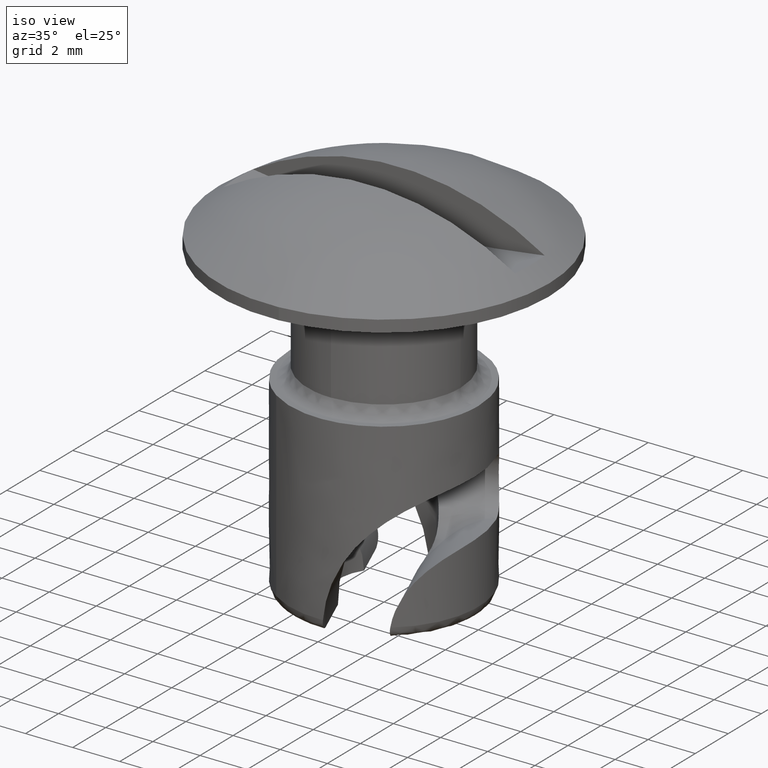
[diagram: clean part render]
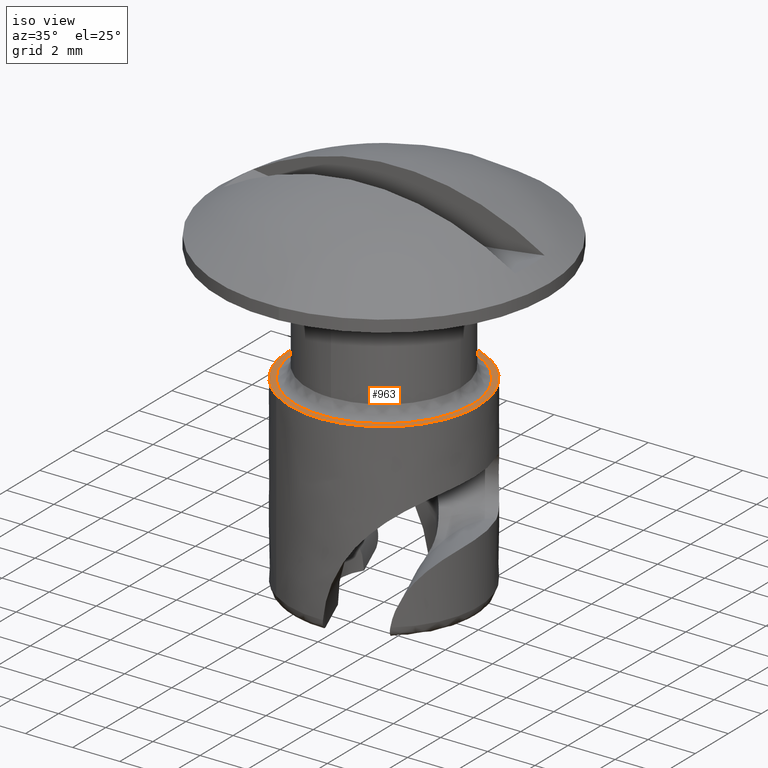
[diagram: same view with one face highlighted and labeled with its STEP entity id]
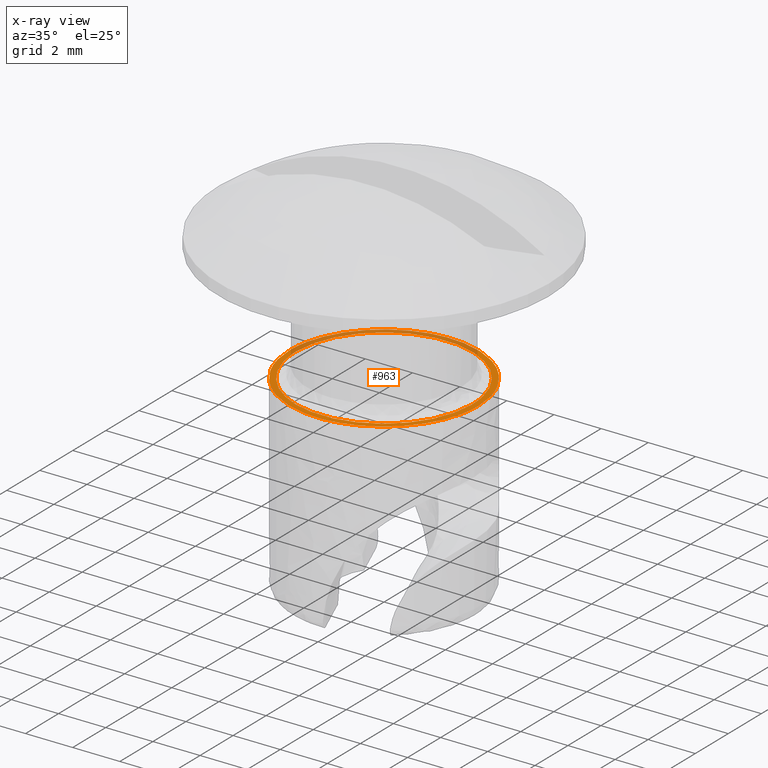
[diagram: x-ray of the same camera — body ghosted, the highlighted face saturated]
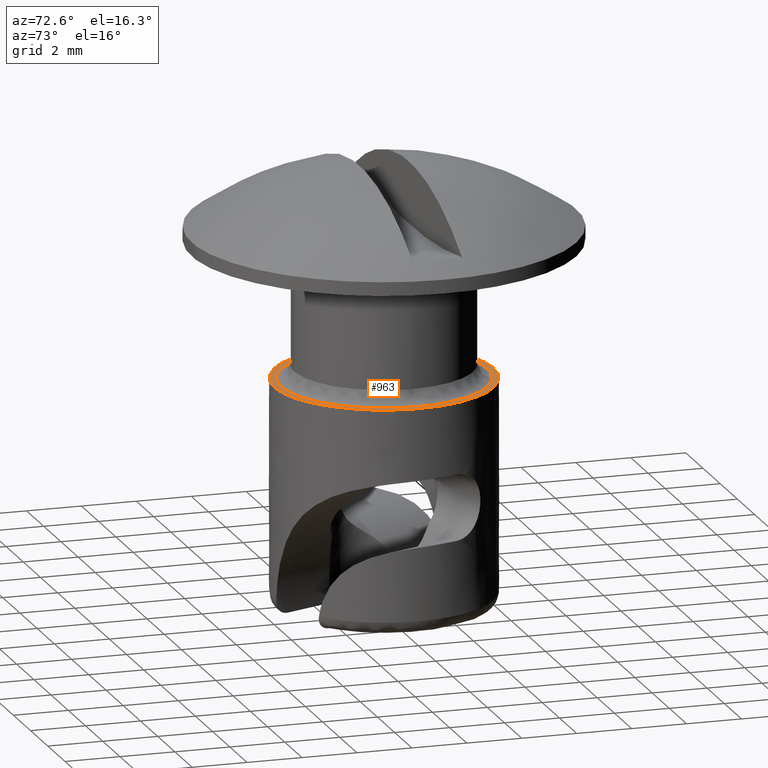
[diagram: same view with one face highlighted and labeled with its STEP entity id]
A machine part, iso view. The second image highlights one B-rep face of the part: STEP entity #963.
The next image is the same camera in x-ray: the body ghosted, the highlighted face saturated — about 32% of this face is hidden behind the body in this view.
A second angle (auxiliary view) of the same face is appended — the face is thin or edge-on in the first view.
In plain terms, the highlighted face is a freeform B-spline surface patch.
Its self-contained STEP definition (entity closure, byte-faithful):
#732=CARTESIAN_POINT('',(-3.750000000000000,0.0,-4.999992000000210));
#733=VERTEX_POINT('',#732);
#734=CARTESIAN_POINT('',(-3.749703915290428,0.047122649625728,-4.999992000000193));
#735=VERTEX_POINT('',#734);
#736=CARTESIAN_POINT('',(-3.750000000000000,0.0,-4.999992000000210));
#737=CARTESIAN_POINT('',(-3.749999999763493,0.023562255001169,-4.999992000000201));
#738=CARTESIAN_POINT('',(-3.749703915290428,0.047122649625728,-4.999992000000193));
#746=(BOUNDED_CURVE()B_SPLINE_CURVE(2,(#736,#737,#738),.UNSPECIFIED.,.F.,.U.)B_SPLINE_CURVE_WITH_KNOTS((3,3),(0.500000000000000,0.502215704081513),.UNSPECIFIED.)CURVE()GEOMETRIC_REPRESENTATION_ITEM()RATIONAL_B_SPLINE_CURVE((1.0,0.997404141198511,0.994854295636553))REPRESENTATION_ITEM(''));
#747=EDGE_CURVE('',#733,#735,#746,.T.);
#749=CARTESIAN_POINT('',(3.749703915290428,-0.047122649625727,-4.999992000000175));
#750=VERTEX_POINT('',#749);
#751=CARTESIAN_POINT('',(3.749703915290428,-0.047122649625727,-4.999992000000175));
#752=CARTESIAN_POINT('',(3.746662377852918,-0.291558350910589,-4.999992000000171));
#753=CARTESIAN_POINT('',(3.700965651367477,-0.703518845582931,-4.999992000000183));
#754=CARTESIAN_POINT('',(3.540671352502162,-1.270860730854824,-4.999992000000173));
#755=CARTESIAN_POINT('',(3.347089044962991,-1.712783889747730,-4.999992000000209));
#756=CARTESIAN_POINT('',(3.100040878657695,-2.126660456400481,-4.999992000000141));
#757=CARTESIAN_POINT('',(2.799464251388684,-2.513663327195478,-4.999992000000234));
#758=CARTESIAN_POINT('',(2.447474222344457,-2.854876685069532,-4.999992000000221));
#759=CARTESIAN_POINT('',(2.030654390561566,-3.166207305167405,-4.999992000000185));
#760=CARTESIAN_POINT('',(1.568420489145595,-3.422995027837601,-4.999992000000226));
#761=CARTESIAN_POINT('',(0.992913245954962,-3.633884736456574,-4.999992000000197));
#762=CARTESIAN_POINT('',(0.420131433195169,-3.741791379035377,-4.999992000000233));
#763=CARTESIAN_POINT('',(-0.184451618364608,-3.760167958400478,-4.999992000000272));
#764=CARTESIAN_POINT('',(-0.739965251097382,-3.691838576187297,-4.999992000000185));
#765=CARTESIAN_POINT('',(-1.255414925216562,-3.544584771128811,-4.999992000000216));
#766=CARTESIAN_POINT('',(-1.670085814366355,-3.366037304403929,-4.999992000000213));
#767=CARTESIAN_POINT('',(-2.069172460084930,-3.139348268776774,-4.999992000000209));
#768=CARTESIAN_POINT('',(-2.498657820733173,-2.818348644488922,-4.999992000000212));
#769=CARTESIAN_POINT('',(-2.871212748637404,-2.431813444986001,-4.999992000000208));
#770=CARTESIAN_POINT('',(-3.158204382636584,-2.035179301750468,-4.999992000000215));
#771=CARTESIAN_POINT('',(-3.348106220404380,-1.703103081502268,-4.999992000000232));
#772=CARTESIAN_POINT('',(-3.522192183731184,-1.311837645944310,-4.999992000000152));
#773=CARTESIAN_POINT('',(-3.695611336529384,-0.756255533108629,-4.999992000000335));
#774=CARTESIAN_POINT('',(-3.750061971592060,-0.290295247946559,-4.999991999999927));
#775=CARTESIAN_POINT('',(-3.750000000000000,0.0,-4.999992000000210));
#776=B_SPLINE_CURVE_WITH_KNOTS('',3,(#751,#752,#753,#754,#755,#756,#757,#758,#759,#760,#761,#762,#763,#764,#765,#766,#767,#768,#769,#770,#771,#772,#773,#774,#775),.UNSPECIFIED.,.F.,.U.,(4,1,1,1,1,1,1,1,1,1,1,1,1,1,1,1,1,1,1,1,1,1,4),(0.000000024463086,0.733357739141079,1.237548201243850,1.764661261528715,2.177179243345098,2.681371514838835,3.231399078616633,3.643917343509703,4.239777123887730,4.812723847860291,5.477343369914136,5.981510974516823,6.623208908558252,7.150316927353670,7.585755524540731,7.975360875350141,8.525386505558169,9.190001984571103,9.579606185690095,9.992122868080974,10.335894213473820,10.862997837933090,11.733866820762969),.UNSPECIFIED.);
#777=EDGE_CURVE('',#750,#733,#776,.T.);
#834=CARTESIAN_POINT('',(3.750000000000000,0.0,-4.999992000000175));
#835=VERTEX_POINT('',#834);
#836=CARTESIAN_POINT('',(-3.749703915290428,0.047122649625728,-4.999992000000193));
#837=CARTESIAN_POINT('',(-3.746126003011656,0.337396213139932,-4.999992000000184));
#838=CARTESIAN_POINT('',(-3.688767161910375,0.779747272103359,-4.999992000000193));
#839=CARTESIAN_POINT('',(-3.490543356938473,1.407396180174083,-4.999992000000193));
#840=CARTESIAN_POINT('',(-3.275964969114289,1.848694176716091,-4.999992000000178));
#841=CARTESIAN_POINT('',(-2.996350410011013,2.268973836026130,-4.999992000000185));
#842=CARTESIAN_POINT('',(-2.738906318341573,2.572678628294289,-4.999992000000266));
#843=CARTESIAN_POINT('',(-2.400069261712156,2.893208490428320,-4.999992000000137));
#844=CARTESIAN_POINT('',(-2.024784653580033,3.171741306699664,-4.999992000000191));
#845=CARTESIAN_POINT('',(-1.607018301228092,3.397167666826140,-4.999992000000258));
#846=CARTESIAN_POINT('',(-1.181217318503042,3.568123235328663,-4.999991999999868));
#847=CARTESIAN_POINT('',(-0.760019441938963,3.682736494061292,-4.999992000000933));
#848=CARTESIAN_POINT('',(-0.320380196005538,3.743487025079305,-4.999991999999041));
#849=CARTESIAN_POINT('',(0.092433353012094,3.756034458654320,-4.999992000000791));
#850=CARTESIAN_POINT('',(0.565473620266861,3.719759731802006,-4.999991999999736));
#851=CARTESIAN_POINT('',(1.149335506578177,3.590978657720899,-4.999992000000392));
#852=CARTESIAN_POINT('',(1.708466673711639,3.356287318152629,-4.999992000000109));
#853=CARTESIAN_POINT('',(2.169914251703044,3.069314811998766,-4.999992000000193));
#854=CARTESIAN_POINT('',(2.492389525273827,2.810945336343823,-4.999992000000177));
#855=CARTESIAN_POINT('',(2.775265858607730,2.531457079862459,-4.999992000000180));
#856=CARTESIAN_POINT('',(3.043309424272947,2.207080182997363,-4.999992000000177));
#857=CARTESIAN_POINT('',(3.319436766033606,1.774747772118810,-4.999992000000177));
#858=CARTESIAN_POINT('',(3.518852901921294,1.326531313580744,-4.999992000000166));
#859=CARTESIAN_POINT('',(3.698348688609220,0.725690391105588,-4.999992000000246));
#860=CARTESIAN_POINT('',(3.750086581329323,0.305576778699908,-4.999992000000034));
#861=CARTESIAN_POINT('',(3.750000000000000,0.0,-4.999992000000175));
#862=B_SPLINE_CURVE_WITH_KNOTS('',3,(#836,#837,#838,#839,#840,#841,#842,#843,#844,#845,#846,#847,#848,#849,#850,#851,#852,#853,#854,#855,#856,#857,#858,#859,#860,#861),.UNSPECIFIED.,.F.,.U.,(4,1,1,1,1,1,1,1,1,1,1,1,1,1,1,1,1,1,1,1,1,1,1,4),(0.000000024459794,0.870862968669021,1.329222875440825,1.970919629117446,2.337605402730693,2.841796342802260,3.162645651112541,3.735590744946608,4.239777123887023,4.583549636096824,5.110658868722572,5.546092391795880,5.912758311490295,6.348194769452091,6.966982024986043,7.700349324716902,8.158701156447016,8.594139959835422,8.937907356673801,9.350427112658567,9.854616915400698,10.473397630315930,10.817167221306271,11.733866820762961),.UNSPECIFIED.);
#863=EDGE_CURVE('',#735,#835,#862,.T.);
#870=CARTESIAN_POINT('',(3.750000000000000,0.0,-4.999992000000175));
#871=CARTESIAN_POINT('',(3.749999999763492,-0.023562255001168,-4.999992000000176));
#872=CARTESIAN_POINT('',(3.749703915290428,-0.047122649625727,-4.999992000000176));
#880=(BOUNDED_CURVE()B_SPLINE_CURVE(2,(#870,#871,#872),.UNSPECIFIED.,.F.,.U.)B_SPLINE_CURVE_WITH_KNOTS((3,3),(0.0,0.002215704081513),.UNSPECIFIED.)CURVE()GEOMETRIC_REPRESENTATION_ITEM()RATIONAL_B_SPLINE_CURVE((1.0,0.997404141198511,0.994854295636553))REPRESENTATION_ITEM(''));
#881=EDGE_CURVE('',#835,#750,#880,.T.);
#886=CARTESIAN_POINT('',(-4.399599984494448,-4.398605883718724,-4.999992000000210));
#887=CARTESIAN_POINT('',(4.399600199071169,-4.398605883718724,-4.999992000000210));
#888=CARTESIAN_POINT('',(-4.399599984494448,4.398605812193151,-4.999992000000210));
#889=CARTESIAN_POINT('',(4.399600199071169,4.398605812193151,-4.999992000000210));
#890=B_SPLINE_SURFACE_WITH_KNOTS('',1,1,((#886,#888),(#887,#889)),.UNSPECIFIED.,.F.,.F.,.U.,(2,2),(2,2),(0.0,8.799200183565617),(0.0,8.797211695911875),.UNSPECIFIED.);
#891=CARTESIAN_POINT('',(4.0,0.0,-4.999992000000230));
#892=VERTEX_POINT('',#891);
#893=CARTESIAN_POINT('',(2.259197574240169,3.300912952585230,-4.999992000000231));
#894=VERTEX_POINT('',#893);
#895=CARTESIAN_POINT('',(4.0,0.0,-4.999992000000230));
#896=CARTESIAN_POINT('',(3.999999999999916,2.109479953897067,-4.999992000000231));
#897=CARTESIAN_POINT('',(2.259197574240169,3.300912952585230,-4.999992000000231));
#905=(BOUNDED_CURVE()B_SPLINE_CURVE(2,(#895,#896,#897),.UNSPECIFIED.,.F.,.U.)B_SPLINE_CURVE_WITH_KNOTS((3,3),(0.0,0.153025890299699),.UNSPECIFIED.)CURVE()GEOMETRIC_REPRESENTATION_ITEM()RATIONAL_B_SPLINE_CURVE((1.0,0.820719017713307,0.860915090852421))REPRESENTATION_ITEM(''));
#906=EDGE_CURVE('',#892,#894,#905,.T.);
#907=ORIENTED_EDGE('',*,*,#906,.T.);
#908=CARTESIAN_POINT('',(-4.0,0.0,-4.999992000000230));
#909=VERTEX_POINT('',#908);
#910=CARTESIAN_POINT('',(2.259197574240169,3.300912952585230,-4.999992000000231));
#911=CARTESIAN_POINT('',(1.237761682086624,3.999999999999773,-4.999992000000231));
#912=CARTESIAN_POINT('',(-1.292140E-013,3.999999999999811,-4.999992000000230));
#913=CARTESIAN_POINT('',(-4.000000000000044,3.999999999999935,-4.999992000000230));
#914=CARTESIAN_POINT('',(-4.0,0.0,-4.999992000000230));
#922=(BOUNDED_CURVE()B_SPLINE_CURVE(2,(#910,#911,#912,#913,#914),.UNSPECIFIED.,.F.,.U.)B_SPLINE_CURVE_WITH_KNOTS((3,2,3),(0.153025890299699,0.250000000000000,0.500000000000000),.UNSPECIFIED.)CURVE()GEOMETRIC_REPRESENTATION_ITEM()RATIONAL_B_SPLINE_CURVE((0.860915090852421,0.886387763473240,1.0,0.707106781186548,1.0))REPRESENTATION_ITEM(''));
#923=EDGE_CURVE('',#894,#909,#922,.T.);
#924=ORIENTED_EDGE('',*,*,#923,.T.);
#925=CARTESIAN_POINT('',(-2.259197574405651,-3.300912952471971,-4.999992000000231));
#926=VERTEX_POINT('',#925);
#927=CARTESIAN_POINT('',(-4.0,0.0,-4.999992000000230));
#928=CARTESIAN_POINT('',(-3.999999999999916,-2.109479953768916,-4.999992000000231));
#929=CARTESIAN_POINT('',(-2.259197574405651,-3.300912952471971,-4.999992000000231));
#937=(BOUNDED_CURVE()B_SPLINE_CURVE(2,(#927,#928,#929),.UNSPECIFIED.,.F.,.U.)B_SPLINE_CURVE_WITH_KNOTS((3,3),(0.500000000000000,0.653025890292069),.UNSPECIFIED.)CURVE()GEOMETRIC_REPRESENTATION_ITEM()RATIONAL_B_SPLINE_CURVE((1.0,0.820719017722246,0.860915090848412))REPRESENTATION_ITEM(''));
#938=EDGE_CURVE('',#909,#926,#937,.T.);
#939=ORIENTED_EDGE('',*,*,#938,.T.);
#940=CARTESIAN_POINT('',(-2.259197574405651,-3.300912952471971,-4.999992000000231));
#941=CARTESIAN_POINT('',(-1.237761682196489,-3.999999999999774,-4.999992000000232));
#942=CARTESIAN_POINT('',(1.295531E-013,-3.999999999999812,-4.999992000000232));
#943=CARTESIAN_POINT('',(4.000000000000044,-3.999999999999936,-4.999992000000232));
#944=CARTESIAN_POINT('',(4.0,0.0,-4.999992000000230));
#952=(BOUNDED_CURVE()B_SPLINE_CURVE(2,(#940,#941,#942,#943,#944),.UNSPECIFIED.,.F.,.U.)B_SPLINE_CURVE_WITH_KNOTS((3,2,3),(0.653025890292069,0.750000000000000,1.0),.UNSPECIFIED.)CURVE()GEOMETRIC_REPRESENTATION_ITEM()RATIONAL_B_SPLINE_CURVE((0.860915090848412,0.886387763464301,1.0,0.707106781186548,1.0))REPRESENTATION_ITEM(''));
#953=EDGE_CURVE('',#926,#892,#952,.T.);
#954=ORIENTED_EDGE('',*,*,#953,.T.);
#955=EDGE_LOOP('',(#907,#924,#939,#954));
#956=FACE_OUTER_BOUND('',#955,.T.);
#957=ORIENTED_EDGE('',*,*,#881,.T.);
#958=ORIENTED_EDGE('',*,*,#777,.T.);
#959=ORIENTED_EDGE('',*,*,#747,.T.);
#960=ORIENTED_EDGE('',*,*,#863,.T.);
#961=EDGE_LOOP('',(#957,#958,#959,#960));
#962=FACE_BOUND('',#961,.T.);
#963=ADVANCED_FACE('',(#956,#962),#890,.T.);